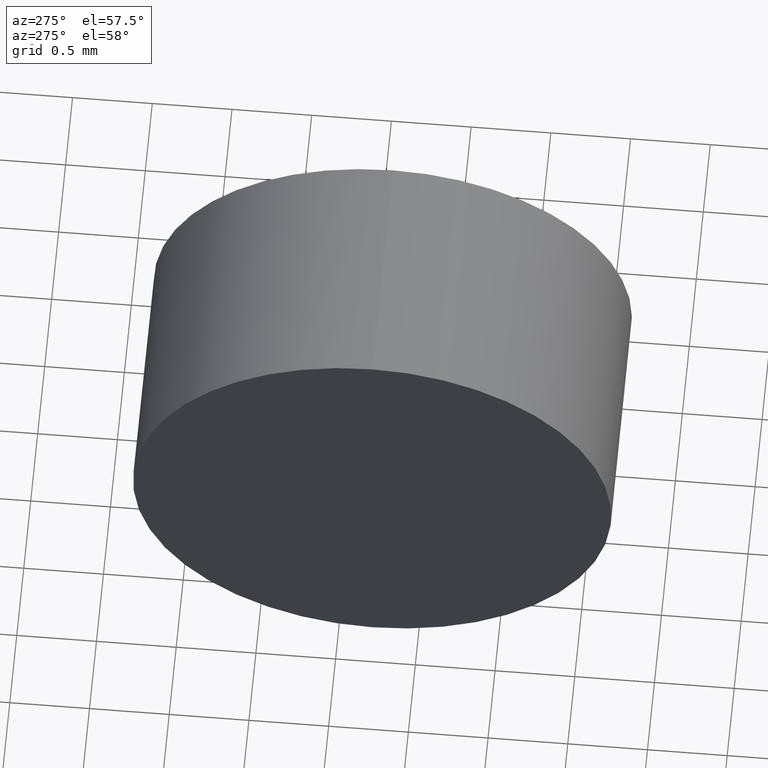
[diagram: clean part render]
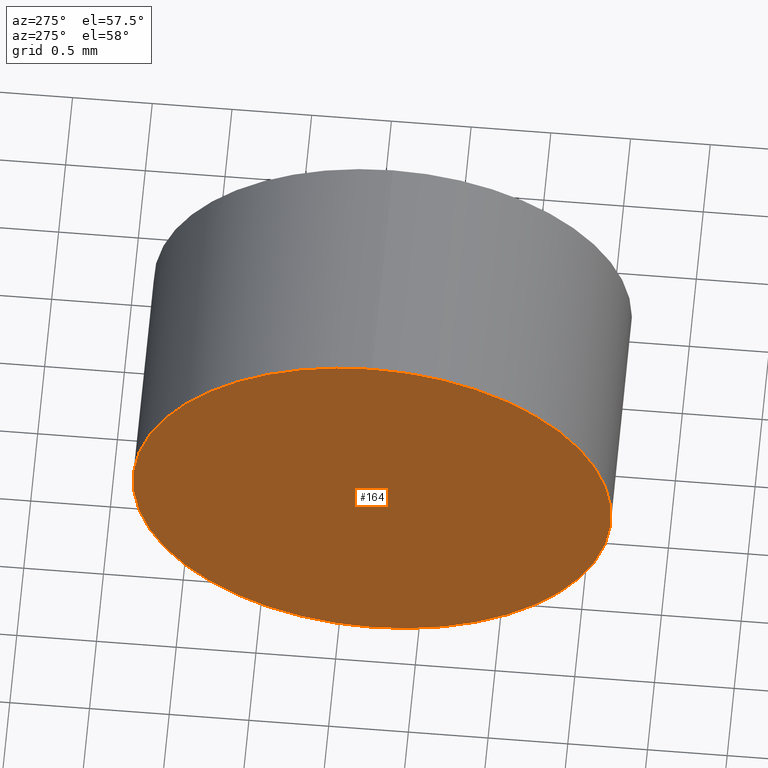
[diagram: same view with one face highlighted and labeled with its STEP entity id]
A machine part, auxiliary view. The second image highlights one B-rep face of the part: STEP entity #164.
In plain terms, the highlighted planar face has unit normal (1, 0, 0).
Its self-contained STEP definition (entity closure, byte-faithful):
#4 = DIRECTION ( 'NONE',  ( 0.0000000000000000000, 0.0000000000000000000, 1.000000000000000000 ) ) ;
#6 = AXIS2_PLACEMENT_3D ( 'NONE', #26, #36, #106 ) ;
#9 = PLANE ( 'NONE',  #6 ) ;
#23 = DIRECTION ( 'NONE',  ( -1.000000000000000000, -0.0000000000000000000, -0.0000000000000000000 ) ) ;
#24 = AXIS2_PLACEMENT_3D ( 'NONE', #31, #115, #74 ) ;
#26 = CARTESIAN_POINT ( 'NONE',  ( 633.7103316825285900, 143.7893486755917300, 0.0000000000000000000 ) ) ;
#31 = CARTESIAN_POINT ( 'NONE',  ( 633.7103316825285900, 143.7893486755917300, 0.0000000000000000000 ) ) ;
#36 = DIRECTION ( 'NONE',  ( 1.000000000000000000, 0.0000000000000000000, 0.0000000000000000000 ) ) ;
#39 = VERTEX_POINT ( 'NONE', #135 ) ;
#50 = ORIENTED_EDGE ( 'NONE', *, *, #95, .T. ) ;
#53 = CIRCLE ( 'NONE', #109, 1.500000000000001300 ) ;
#66 = CARTESIAN_POINT ( 'NONE',  ( 633.7103316825285900, 143.7893486755917300, -1.500000000000001300 ) ) ;
#67 = CIRCLE ( 'NONE', #24, 1.500000000000001300 ) ;
#69 = EDGE_CURVE ( 'NONE', #39, #170, #67, .T. ) ;
#74 = DIRECTION ( 'NONE',  ( 0.0000000000000000000, 0.0000000000000000000, 1.000000000000000000 ) ) ;
#95 = EDGE_CURVE ( 'NONE', #170, #39, #53, .T. ) ;
#99 = FACE_OUTER_BOUND ( 'NONE', #128, .T. ) ;
#106 = DIRECTION ( 'NONE',  ( 0.0000000000000000000, 0.0000000000000000000, -1.000000000000000000 ) ) ;
#109 = AXIS2_PLACEMENT_3D ( 'NONE', #177, #23, #4 ) ;
#115 = DIRECTION ( 'NONE',  ( -1.000000000000000000, -0.0000000000000000000, -0.0000000000000000000 ) ) ;
#128 = EDGE_LOOP ( 'NONE', ( #143, #50 ) ) ;
#135 = CARTESIAN_POINT ( 'NONE',  ( 633.7103316825285900, 143.7893486755917300, 1.500000000000001300 ) ) ;
#143 = ORIENTED_EDGE ( 'NONE', *, *, #69, .T. ) ;
#164 = ADVANCED_FACE ( 'NONE', ( #99 ), #9, .F. ) ;
#170 = VERTEX_POINT ( 'NONE', #66 ) ;
#177 = CARTESIAN_POINT ( 'NONE',  ( 633.7103316825285900, 143.7893486755917300, 0.0000000000000000000 ) ) ;